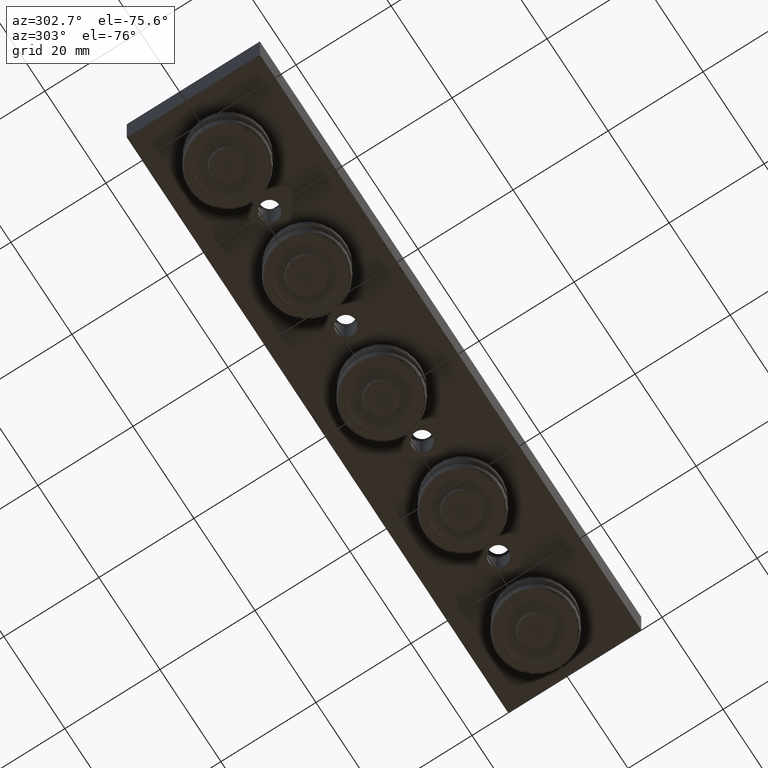
[diagram: clean part render]
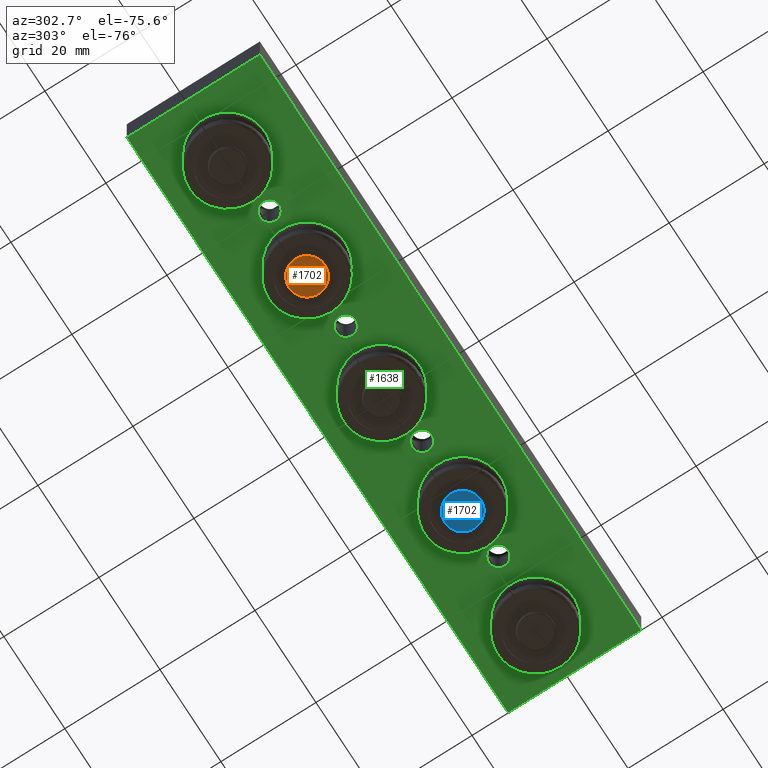
[diagram: same view with three faces highlighted in distinct colors, each labeled with its STEP entity id]
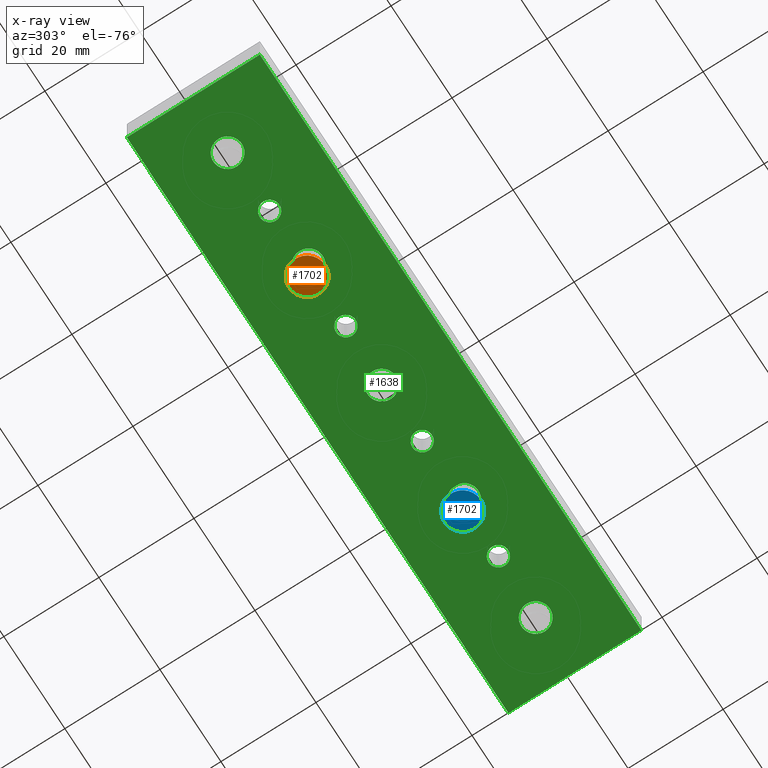
[diagram: x-ray of the same camera — body ghosted, the three highlighted faces saturated]
A machine part, auxiliary view with three faces highlighted in distinct colors.
The next image is the same camera in x-ray (body ghosted, the three faces saturated) — at least one of them is partly hidden behind the body in this view.
Their STEP definitions:

[orange] entity #1702 — the highlighted planar face has unit normal (0, 0, -1).
#231=PLANE('',#2037);
#326=FACE_OUTER_BOUND('',#465,.T.);
#465=EDGE_LOOP('',(#1502));
#766=CIRCLE('',#2004,3.8);
#898=VERTEX_POINT('',#2962);
#1090=EDGE_CURVE('',#898,#898,#766,.T.);
#1502=ORIENTED_EDGE('',*,*,#1090,.F.);
#1702=ADVANCED_FACE('',(#326),#231,.T.);
#2004=AXIS2_PLACEMENT_3D('',#2964,#2450,#2451);
#2037=AXIS2_PLACEMENT_3D('',#3019,#2522,#2523);
#2450=DIRECTION('center_axis',(0.,0.,-1.));
#2451=DIRECTION('ref_axis',(1.,0.,0.));
#2522=DIRECTION('center_axis',(0.,0.,1.));
#2523=DIRECTION('ref_axis',(1.,0.,0.));
#2962=CARTESIAN_POINT('',(-4.65365783675994E-16,-3.8,4.2));
#2964=CARTESIAN_POINT('Origin',(0.,0.,4.2));
#3019=CARTESIAN_POINT('Origin',(0.,3.8,4.2));

[blue] entity #1702 — the highlighted planar face has unit normal (0, 0, -1).
#231=PLANE('',#2037);
#326=FACE_OUTER_BOUND('',#465,.T.);
#465=EDGE_LOOP('',(#1502));
#766=CIRCLE('',#2004,3.8);
#898=VERTEX_POINT('',#2962);
#1090=EDGE_CURVE('',#898,#898,#766,.T.);
#1502=ORIENTED_EDGE('',*,*,#1090,.F.);
#1702=ADVANCED_FACE('',(#326),#231,.T.);
#2004=AXIS2_PLACEMENT_3D('',#2964,#2450,#2451);
#2037=AXIS2_PLACEMENT_3D('',#3019,#2522,#2523);
#2450=DIRECTION('center_axis',(0.,0.,-1.));
#2451=DIRECTION('ref_axis',(1.,0.,0.));
#2522=DIRECTION('center_axis',(0.,0.,1.));
#2523=DIRECTION('ref_axis',(1.,0.,0.));
#2962=CARTESIAN_POINT('',(-4.65365783675994E-16,-3.8,4.2));
#2964=CARTESIAN_POINT('Origin',(0.,0.,4.2));
#3019=CARTESIAN_POINT('Origin',(0.,3.8,4.2));

[green] entity #1638 — the highlighted planar face has unit normal (0, 0, -1).
#153=FACE_BOUND('',#371,.T.);
#154=FACE_BOUND('',#372,.T.);
#155=FACE_BOUND('',#373,.T.);
#156=FACE_BOUND('',#374,.T.);
#157=FACE_BOUND('',#375,.T.);
#158=FACE_BOUND('',#376,.T.);
#159=FACE_BOUND('',#377,.T.);
#160=FACE_BOUND('',#378,.T.);
#161=FACE_BOUND('',#379,.T.);
#193=PLANE('',#1914);
#262=FACE_OUTER_BOUND('',#370,.T.);
#370=EDGE_LOOP('',(#1223,#1224,#1225,#1226));
#371=EDGE_LOOP('',(#1227));
#372=EDGE_LOOP('',(#1228));
#373=EDGE_LOOP('',(#1229));
#374=EDGE_LOOP('',(#1230));
#375=EDGE_LOOP('',(#1231));
#376=EDGE_LOOP('',(#1232));
#377=EDGE_LOOP('',(#1233));
#378=EDGE_LOOP('',(#1234));
#379=EDGE_LOOP('',(#1235));
#503=LINE('',#2740,#609);
#504=LINE('',#2742,#610);
#505=LINE('',#2744,#611);
#506=LINE('',#2745,#612);
#609=VECTOR('',#2204,10.);
#610=VECTOR('',#2205,10.);
#611=VECTOR('',#2206,10.);
#612=VECTOR('',#2207,10.);
#702=CIRCLE('',#1869,2.067);
#704=CIRCLE('',#1872,2.067);
#706=CIRCLE('',#1875,2.067);
#708=CIRCLE('',#1878,2.067);
#712=CIRCLE('',#1885,3.);
#716=CIRCLE('',#1892,3.);
#720=CIRCLE('',#1899,3.);
#724=CIRCLE('',#1906,3.);
#728=CIRCLE('',#1913,3.);
#803=VERTEX_POINT('',#2651);
#805=VERTEX_POINT('',#2657);
#807=VERTEX_POINT('',#2663);
#809=VERTEX_POINT('',#2669);
#813=VERTEX_POINT('',#2682);
#817=VERTEX_POINT('',#2695);
#821=VERTEX_POINT('',#2708);
#825=VERTEX_POINT('',#2721);
#829=VERTEX_POINT('',#2734);
#830=VERTEX_POINT('',#2738);
#831=VERTEX_POINT('',#2739);
#832=VERTEX_POINT('',#2741);
#833=VERTEX_POINT('',#2743);
#945=EDGE_CURVE('',#803,#803,#702,.T.);
#948=EDGE_CURVE('',#805,#805,#704,.T.);
#951=EDGE_CURVE('',#807,#807,#706,.T.);
#954=EDGE_CURVE('',#809,#809,#708,.T.);
#960=EDGE_CURVE('',#813,#813,#712,.T.);
#966=EDGE_CURVE('',#817,#817,#716,.T.);
#972=EDGE_CURVE('',#821,#821,#720,.T.);
#978=EDGE_CURVE('',#825,#825,#724,.T.);
#984=EDGE_CURVE('',#829,#829,#728,.T.);
#985=EDGE_CURVE('',#830,#831,#503,.T.);
#986=EDGE_CURVE('',#831,#832,#504,.T.);
#987=EDGE_CURVE('',#832,#833,#505,.T.);
#988=EDGE_CURVE('',#833,#830,#506,.T.);
#1223=ORIENTED_EDGE('',*,*,#985,.T.);
#1224=ORIENTED_EDGE('',*,*,#986,.T.);
#1225=ORIENTED_EDGE('',*,*,#987,.T.);
#1226=ORIENTED_EDGE('',*,*,#988,.T.);
#1227=ORIENTED_EDGE('',*,*,#945,.T.);
#1228=ORIENTED_EDGE('',*,*,#948,.T.);
#1229=ORIENTED_EDGE('',*,*,#951,.T.);
#1230=ORIENTED_EDGE('',*,*,#954,.T.);
#1231=ORIENTED_EDGE('',*,*,#960,.T.);
#1232=ORIENTED_EDGE('',*,*,#966,.T.);
#1233=ORIENTED_EDGE('',*,*,#972,.T.);
#1234=ORIENTED_EDGE('',*,*,#978,.T.);
#1235=ORIENTED_EDGE('',*,*,#984,.T.);
#1638=ADVANCED_FACE('',(#262,#153,#154,#155,#156,#157,#158,#159,#160,#161),
#193,.T.);
#1869=AXIS2_PLACEMENT_3D('',#2653,#2099,#2100);
#1872=AXIS2_PLACEMENT_3D('',#2659,#2106,#2107);
#1875=AXIS2_PLACEMENT_3D('',#2665,#2113,#2114);
#1878=AXIS2_PLACEMENT_3D('',#2671,#2120,#2121);
#1885=AXIS2_PLACEMENT_3D('',#2684,#2136,#2137);
#1892=AXIS2_PLACEMENT_3D('',#2697,#2152,#2153);
#1899=AXIS2_PLACEMENT_3D('',#2710,#2168,#2169);
#1906=AXIS2_PLACEMENT_3D('',#2723,#2184,#2185);
#1913=AXIS2_PLACEMENT_3D('',#2736,#2200,#2201);
#1914=AXIS2_PLACEMENT_3D('',#2737,#2202,#2203);
#2099=DIRECTION('center_axis',(0.,0.,1.));
#2100=DIRECTION('ref_axis',(1.,0.,0.));
#2106=DIRECTION('center_axis',(0.,0.,1.));
#2107=DIRECTION('ref_axis',(1.,0.,0.));
#2113=DIRECTION('center_axis',(0.,0.,1.));
#2114=DIRECTION('ref_axis',(1.,0.,0.));
#2120=DIRECTION('center_axis',(0.,0.,1.));
#2121=DIRECTION('ref_axis',(1.,0.,0.));
#2136=DIRECTION('center_axis',(0.,0.,1.));
#2137=DIRECTION('ref_axis',(1.,0.,0.));
#2152=DIRECTION('center_axis',(0.,0.,1.));
#2153=DIRECTION('ref_axis',(1.,0.,0.));
#2168=DIRECTION('center_axis',(0.,0.,1.));
#2169=DIRECTION('ref_axis',(1.,0.,0.));
#2184=DIRECTION('center_axis',(0.,0.,1.));
#2185=DIRECTION('ref_axis',(1.,0.,0.));
#2200=DIRECTION('center_axis',(0.,0.,1.));
#2201=DIRECTION('ref_axis',(1.,0.,0.));
#2202=DIRECTION('center_axis',(0.,0.,-1.));
#2203=DIRECTION('ref_axis',(-1.,0.,0.));
#2204=DIRECTION('',(-1.,-1.06581410364015E-16,0.));
#2205=DIRECTION('',(0.,1.,0.));
#2206=DIRECTION('',(1.,2.8421709430404E-16,0.));
#2207=DIRECTION('',(0.,-1.,0.));
#2651=CARTESIAN_POINT('',(10.433,-2.53134493383758E-16,-4.70000000000001));
#2653=CARTESIAN_POINT('Origin',(12.5,0.,-4.70000000000001));
#2657=CARTESIAN_POINT('',(-39.567,-2.53134493383758E-16,-4.70000000000001));
#2659=CARTESIAN_POINT('Origin',(-37.5,0.,-4.70000000000001));
#2663=CARTESIAN_POINT('',(-14.567,-2.53134493383758E-16,-4.70000000000001));
#2665=CARTESIAN_POINT('Origin',(-12.5,0.,-4.70000000000001));
#2669=CARTESIAN_POINT('',(35.433,-2.53134493383758E-16,-4.70000000000001));
#2671=CARTESIAN_POINT('Origin',(37.5,0.,-4.70000000000001));
#2682=CARTESIAN_POINT('',(22.5,-0.500000000000001,-4.70000000000001));
#2684=CARTESIAN_POINT('Origin',(25.5,-0.500000000000001,-4.70000000000001));
#2695=CARTESIAN_POINT('',(-3.,0.5,-4.70000000000001));
#2697=CARTESIAN_POINT('Origin',(0.,0.5,-4.70000000000001));
#2708=CARTESIAN_POINT('',(-53.5,0.5,-4.70000000000001));
#2710=CARTESIAN_POINT('Origin',(-50.5,0.5,-4.70000000000001));
#2721=CARTESIAN_POINT('',(47.5,0.5,-4.70000000000001));
#2723=CARTESIAN_POINT('Origin',(50.5,0.5,-4.70000000000001));
#2734=CARTESIAN_POINT('',(-28.5,-0.500000000000001,-4.70000000000001));
#2736=CARTESIAN_POINT('Origin',(-25.5,-0.500000000000001,-4.70000000000001));
#2737=CARTESIAN_POINT('Origin',(2.66453525910038E-14,0.,-4.7));
#2738=CARTESIAN_POINT('',(62.5,-14.,-4.7));
#2739=CARTESIAN_POINT('',(-62.5,-14.,-4.7));
#2740=CARTESIAN_POINT('',(62.5,-14.,-4.7));
#2741=CARTESIAN_POINT('',(-62.5,14.,-4.7));
#2742=CARTESIAN_POINT('',(-62.5,-14.,-4.7));
#2743=CARTESIAN_POINT('',(62.5,14.,-4.7));
#2744=CARTESIAN_POINT('',(-62.5,14.,-4.7));
#2745=CARTESIAN_POINT('',(62.5,14.,-4.7));